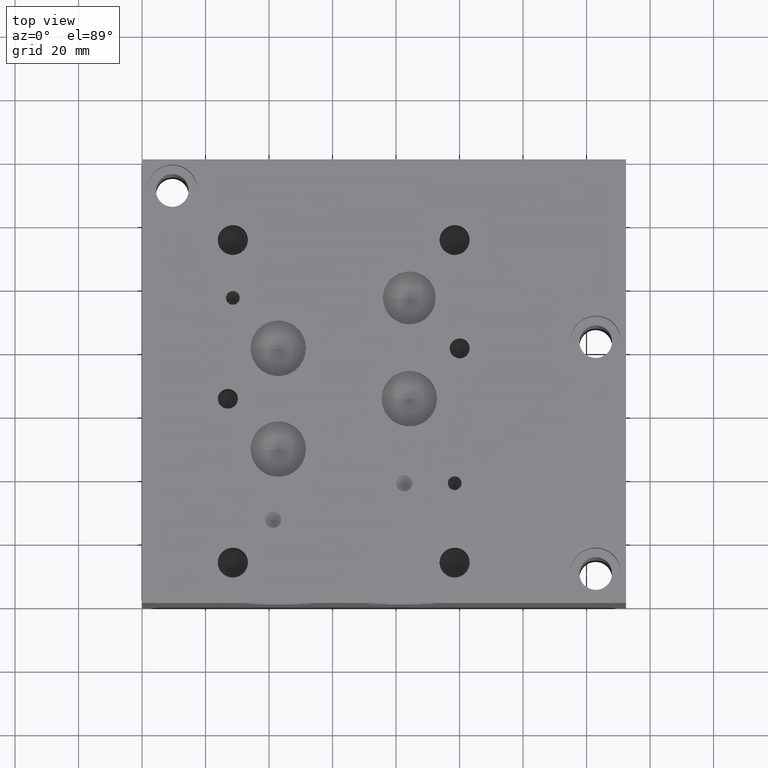
[diagram: clean part render]
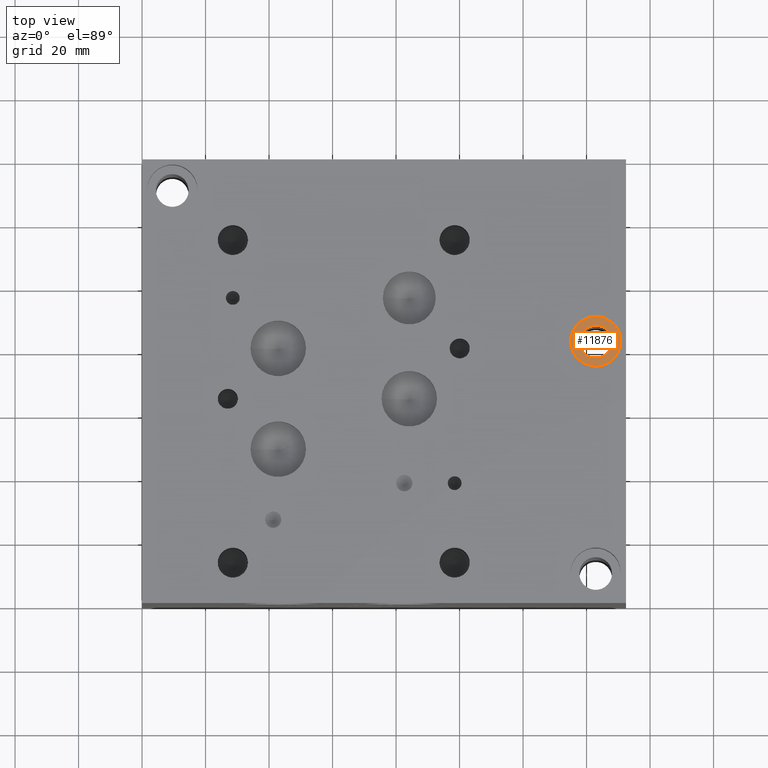
[diagram: same view with one face highlighted and labeled with its STEP entity id]
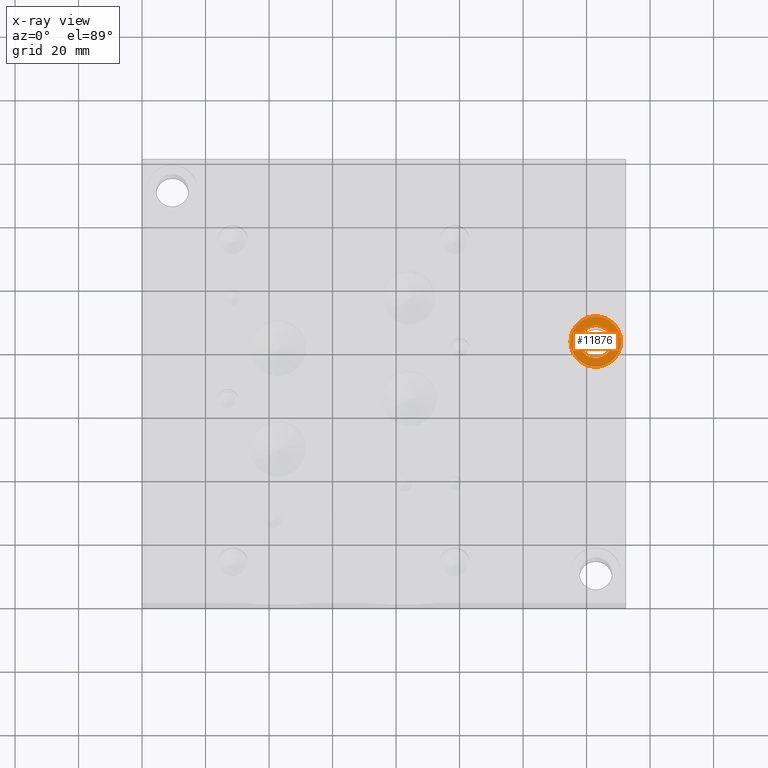
[diagram: x-ray of the same camera — body ghosted, the highlighted face saturated]
A machine part, top view. The second image highlights one B-rep face of the part: STEP entity #11876.
The next image is the same camera in x-ray: the body ghosted, the highlighted face saturated — about 0% of this face is hidden behind the body in this view.
In plain terms, the highlighted planar face has unit normal (0, 0, 1).
Its self-contained STEP definition (entity closure, byte-faithful):
#328=CIRCLE('',#12548,7.9375);
#329=CIRCLE('',#12549,7.9375);
#330=CIRCLE('',#12550,5.1562);
#487=FACE_BOUND('',#2094,.T.);
#843=PLANE('',#12547);
#1413=FACE_OUTER_BOUND('',#2093,.T.);
#2093=EDGE_LOOP('',(#10445,#10446));
#2094=EDGE_LOOP('',(#10447));
#5672=VERTEX_POINT('',#20301);
#5673=VERTEX_POINT('',#20302);
#5674=VERTEX_POINT('',#20305);
#7300=EDGE_CURVE('',#5672,#5673,#328,.T.);
#7301=EDGE_CURVE('',#5673,#5672,#329,.T.);
#7302=EDGE_CURVE('',#5674,#5674,#330,.T.);
#10445=ORIENTED_EDGE('',*,*,#7300,.T.);
#10446=ORIENTED_EDGE('',*,*,#7301,.T.);
#10447=ORIENTED_EDGE('',*,*,#7302,.F.);
#11876=ADVANCED_FACE('',(#1413,#487),#843,.T.);
#12547=AXIS2_PLACEMENT_3D('',#20300,#14945,#14946);
#12548=AXIS2_PLACEMENT_3D('',#20303,#14947,#14948);
#12549=AXIS2_PLACEMENT_3D('',#20304,#14949,#14950);
#12550=AXIS2_PLACEMENT_3D('',#20306,#14951,#14952);
#14945=DIRECTION('center_axis',(0.,0.,1.));
#14946=DIRECTION('ref_axis',(1.,0.,0.));
#14947=DIRECTION('center_axis',(0.,0.,1.));
#14948=DIRECTION('ref_axis',(1.,0.,0.));
#14949=DIRECTION('center_axis',(0.,0.,1.));
#14950=DIRECTION('ref_axis',(1.,0.,0.));
#14951=DIRECTION('center_axis',(0.,0.,1.));
#14952=DIRECTION('ref_axis',(1.,0.,0.));
#20300=CARTESIAN_POINT('Origin',(142.875,82.55,87.3252));
#20301=CARTESIAN_POINT('',(150.8125,82.55,87.3252));
#20302=CARTESIAN_POINT('',(134.9375,82.55,87.3252));
#20303=CARTESIAN_POINT('Origin',(142.875,82.55,87.3252));
#20304=CARTESIAN_POINT('Origin',(142.875,82.55,87.3252));
#20305=CARTESIAN_POINT('',(137.7188,82.55,87.3252));
#20306=CARTESIAN_POINT('Origin',(142.875,82.55,87.3252));